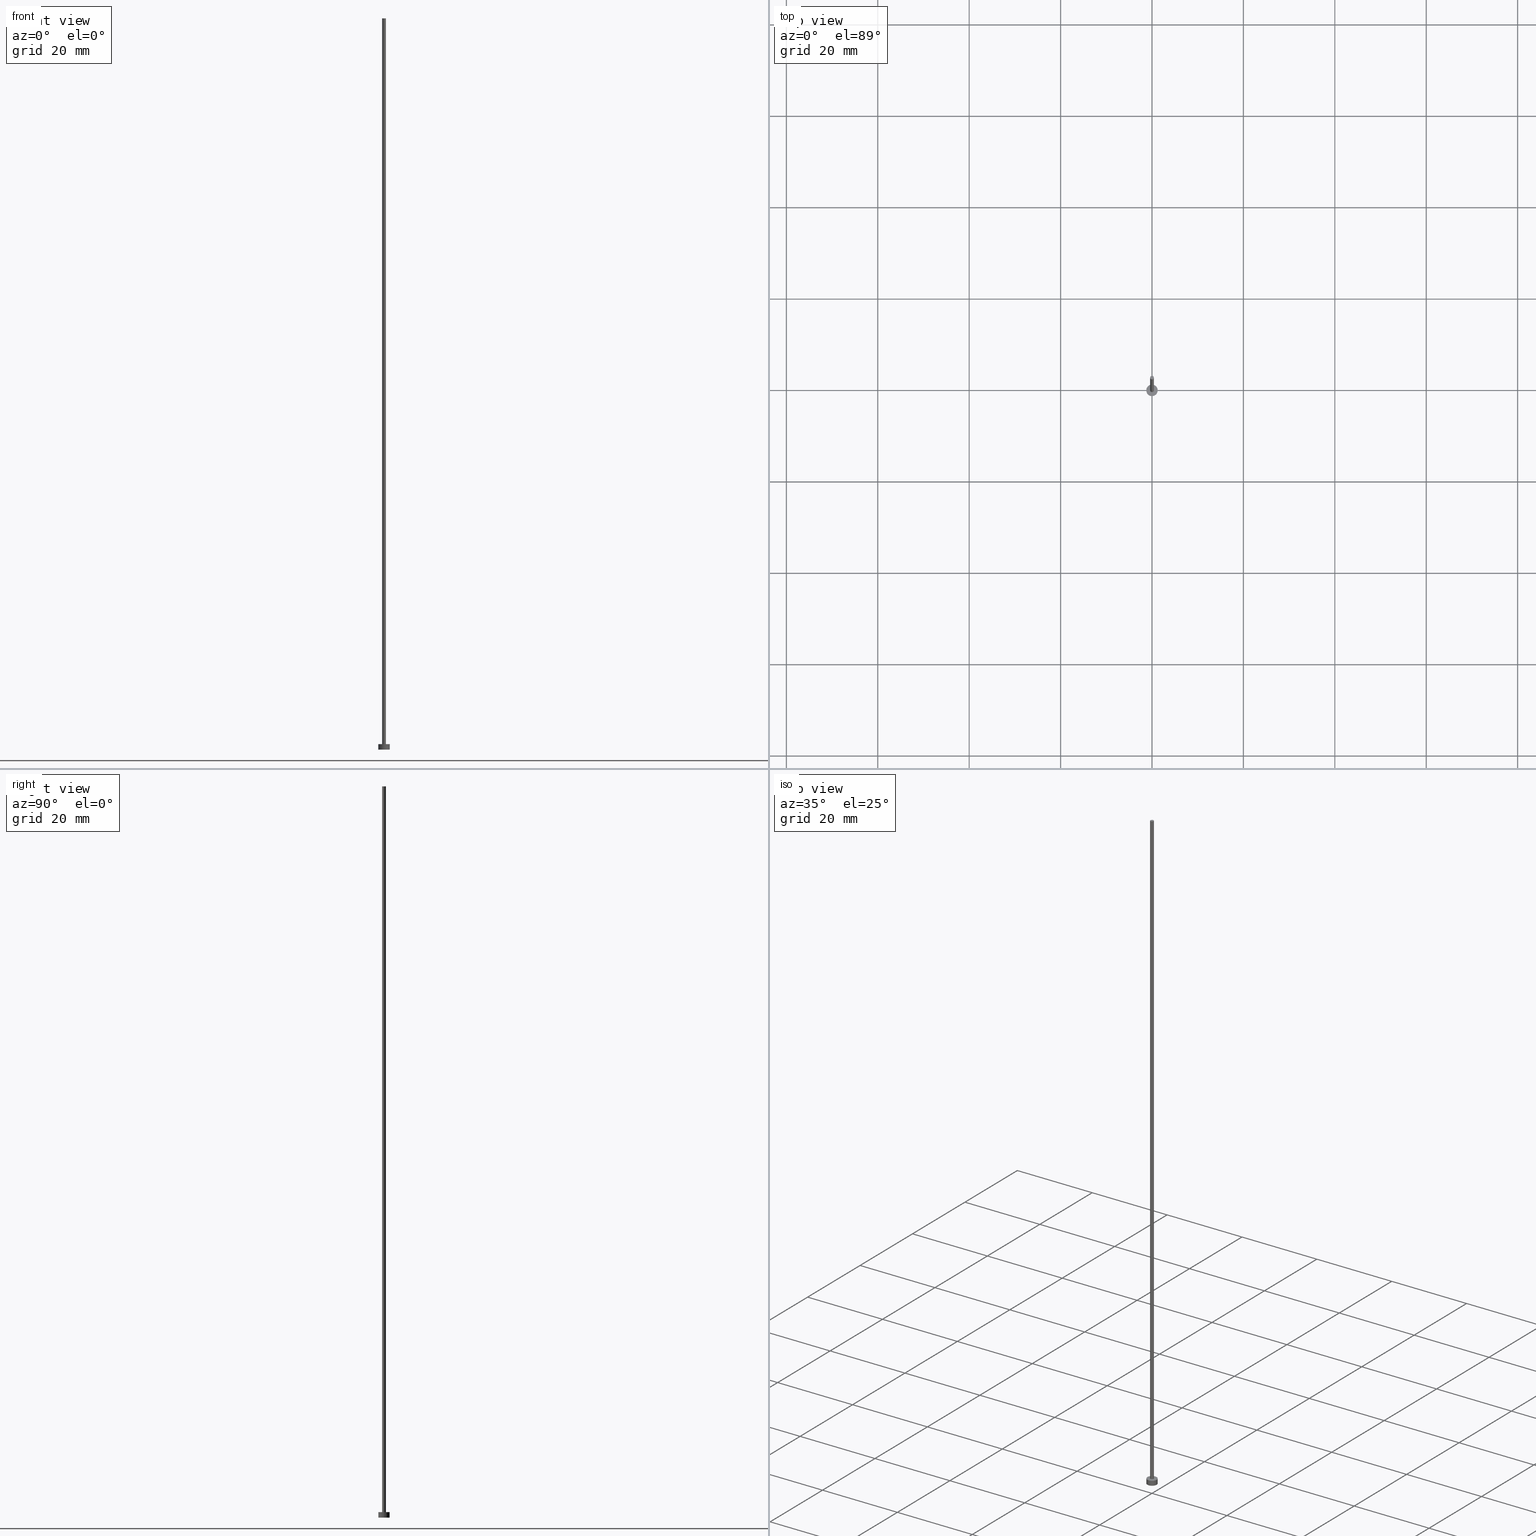
[diagram: canonical four-view strip — front | top / right | iso, engineering-drawing reading convention]
A machine part, canonical four-view strip (front | top / right | iso — engineering-drawing reading convention). The complete STEP part file that produces these views, byte-faithful:
ISO-10303-21;
HEADER;
FILE_DESCRIPTION (( 'STEP AP203' ),
    '1' );
FILE_NAME ('093f.STEP',
    '2026-02-06T12:44:34',
    ( '' ),
    ( '' ),
    'SwSTEP 2.0',
    'SolidWorks 2019',
    '' );
FILE_SCHEMA (( 'CONFIG_CONTROL_DESIGN' ));
ENDSEC;

DATA;
#1 = DIRECTION ( 'NONE',  ( 1.000000000000000000, 0.000000000000000000, -0.000000000000000000 ) ) ;
#2 = ORIENTED_EDGE ( 'NONE', *, *, #193, .T. ) ;
#3 = AXIS2_PLACEMENT_3D ( 'NONE', #77, #28, #171 ) ;
#4 = ORIENTED_EDGE ( 'NONE', *, *, #88, .F. ) ;
#5 = CARTESIAN_POINT ( 'NONE',  ( 0.000000000000000000, 0.000000000000000000, 1.199999999999999956 ) ) ;
#6 = CARTESIAN_POINT ( 'NONE',  ( 0.000000000000000000, 0.000000000000000000, 0.000000000000000000 ) ) ;
#7 = CARTESIAN_POINT ( 'NONE',  ( 0.000000000000000000, 0.000000000000000000, 0.000000000000000000 ) ) ;
#8 = EDGE_CURVE ( 'NONE', #227, #169, #126, .T. ) ;
#9 = VERTEX_POINT ( 'NONE', #155 ) ;
#10 = CARTESIAN_POINT ( 'NONE',  ( 0.000000000000000000, 0.000000000000000000, 160.0000000000000284 ) ) ;
#11 = CC_DESIGN_APPROVAL ( #67, ( #13 ) ) ;
#12 = PLANE ( 'NONE',  #108 ) ;
#13 = SECURITY_CLASSIFICATION ( '', '', #63 ) ;
#14 = APPROVAL_DATE_TIME ( #102, #67 ) ;
#15 = PERSON_AND_ORGANIZATION ( #103, #185 ) ;
#16 =( LENGTH_UNIT ( ) NAMED_UNIT ( * ) SI_UNIT ( .MILLI., .METRE. ) );
#17 = DIRECTION ( 'NONE',  ( -1.000000000000000000, 0.000000000000000000, 0.000000000000000000 ) ) ;
#18 = AXIS2_PLACEMENT_3D ( 'NONE', #219, #20, #36 ) ;
#19 = COORDINATED_UNIVERSAL_TIME_OFFSET ( 1, 0, .AHEAD. ) ;
#20 = DIRECTION ( 'NONE',  ( 0.000000000000000000, 0.000000000000000000, 1.000000000000000000 ) ) ;
#21 = DIRECTION ( 'NONE',  ( 1.000000000000000000, 0.000000000000000000, 0.000000000000000000 ) ) ;
#22 = ADVANCED_FACE ( 'NONE', ( #91, #202 ), #50, .T. ) ;
#23 = FACE_OUTER_BOUND ( 'NONE', #239, .T. ) ;
#24 = DIRECTION ( 'NONE',  ( -0.000000000000000000, -0.000000000000000000, -1.000000000000000000 ) ) ;
#25 = DIRECTION ( 'NONE',  ( 1.000000000000000000, 0.000000000000000000, 0.000000000000000000 ) ) ;
#26 = APPROVAL_ROLE ( '' ) ;
#27 = VECTOR ( 'NONE', #228, 1000.000000000000000 ) ;
#28 = DIRECTION ( 'NONE',  ( 0.000000000000000000, 0.000000000000000000, 1.000000000000000000 ) ) ;
#29 = CALENDAR_DATE ( 2026, 6, 2 ) ;
#30 = PERSON_AND_ORGANIZATION_ROLE ( 'classification_officer' ) ;
#31 = CC_DESIGN_DATE_AND_TIME_ASSIGNMENT ( #229, #46, ( #13 ) ) ;
#32 = PERSON_AND_ORGANIZATION_ROLE ( 'creator' ) ;
#33 = AXIS2_PLACEMENT_3D ( 'NONE', #130, #215, #149 ) ;
#34 = APPROVAL_DATE_TIME ( #47, #236 ) ;
#35 = EDGE_LOOP ( 'NONE', ( #168, #186, #199, #156 ) ) ;
#36 = DIRECTION ( 'NONE',  ( 1.000000000000000000, 0.000000000000000000, 0.000000000000000000 ) ) ;
#37 = EDGE_LOOP ( 'NONE', ( #114, #153 ) ) ;
#38 = DIRECTION ( 'NONE',  ( 0.000000000000000000, 0.000000000000000000, 1.000000000000000000 ) ) ;
#39 = DIRECTION ( 'NONE',  ( 0.000000000000000000, 0.000000000000000000, 1.000000000000000000 ) ) ;
#40 = ORIENTED_EDGE ( 'NONE', *, *, #142, .T. ) ;
#41 = ADVANCED_FACE ( 'NONE', ( #182 ), #134, .T. ) ;
#42 = APPROVAL_PERSON_ORGANIZATION ( #207, #67, #26 ) ;
#43 = DIRECTION ( 'NONE',  ( 0.000000000000000000, 0.000000000000000000, 1.000000000000000000 ) ) ;
#44 = CC_DESIGN_PERSON_AND_ORGANIZATION_ASSIGNMENT ( #15, #226, ( #250 ) ) ;
#45 = EDGE_CURVE ( 'NONE', #162, #53, #167, .T. ) ;
#46 = DATE_TIME_ROLE ( 'classification_date' ) ;
#47 = DATE_AND_TIME ( #175, #56 ) ;
#48 = LOCAL_TIME ( 13, 44, 34.00000000000000000, #19 ) ;
#49 = APPROVAL_STATUS ( 'not_yet_approved' ) ;
#50 = PLANE ( 'NONE',  #254 ) ;
#51 = VECTOR ( 'NONE', #61, 1000.000000000000000 ) ;
#52 = VERTEX_POINT ( 'NONE', #244 ) ;
#53 = VERTEX_POINT ( 'NONE', #116 ) ;
#54 = CARTESIAN_POINT ( 'NONE',  ( 0.4000000000000000222, 4.898587196589413075E-17, 160.0000000000000284 ) ) ;
#55 = DIRECTION ( 'NONE',  ( -1.000000000000000000, 0.000000000000000000, 0.000000000000000000 ) ) ;
#56 = LOCAL_TIME ( 13, 44, 34.00000000000000000, #129 ) ;
#57 = LINE ( 'NONE', #205, #27 ) ;
#58 = CARTESIAN_POINT ( 'NONE',  ( 0.000000000000000000, 0.000000000000000000, 0.000000000000000000 ) ) ;
#59 = ORIENTED_EDGE ( 'NONE', *, *, #45, .T. ) ;
#60 = DIRECTION ( 'NONE',  ( 0.000000000000000000, 0.000000000000000000, 1.000000000000000000 ) ) ;
#61 = DIRECTION ( 'NONE',  ( -0.000000000000000000, -0.000000000000000000, -1.000000000000000000 ) ) ;
#62 =( GEOMETRIC_REPRESENTATION_CONTEXT ( 3 ) GLOBAL_UNCERTAINTY_ASSIGNED_CONTEXT ( ( #204 ) ) GLOBAL_UNIT_ASSIGNED_CONTEXT ( ( #16, #82, #213 ) ) REPRESENTATION_CONTEXT ( 'NONE', 'WORKASPACE' ) );
#63 = SECURITY_CLASSIFICATION_LEVEL ( 'unclassified' ) ;
#64 = ADVANCED_FACE ( 'NONE', ( #100 ), #119, .T. ) ;
#65 = EDGE_CURVE ( 'NONE', #53, #162, #192, .T. ) ;
#66 = CYLINDRICAL_SURFACE ( 'NONE', #160, 1.250000000000000000 ) ;
#67 = APPROVAL ( #124, 'NEUR�EN�' ) ;
#68 = PERSON_AND_ORGANIZATION_ROLE ( 'design_owner' ) ;
#69 = LOCAL_TIME ( 13, 44, 34.00000000000000000, #101 ) ;
#70 = CC_DESIGN_DATE_AND_TIME_ASSIGNMENT ( #234, #176, ( #83 ) ) ;
#71 = ORIENTED_EDGE ( 'NONE', *, *, #133, .F. ) ;
#72 = EDGE_LOOP ( 'NONE', ( #98, #158, #181, #4 ) ) ;
#73 = APPLICATION_CONTEXT ( 'configuration controlled 3d designs of mechanical parts and assemblies' ) ;
#74 = DIRECTION ( 'NONE',  ( -0.000000000000000000, -0.000000000000000000, -1.000000000000000000 ) ) ;
#75 = AXIS2_PLACEMENT_3D ( 'NONE', #187, #105, #106 ) ;
#76 = ORIENTED_EDGE ( 'NONE', *, *, #142, .F. ) ;
#77 = CARTESIAN_POINT ( 'NONE',  ( 0.000000000000000000, 0.000000000000000000, 1.199999999999999956 ) ) ;
#78 = CYLINDRICAL_SURFACE ( 'NONE', #209, 0.4000000000000000222 ) ;
#79 = FACE_OUTER_BOUND ( 'NONE', #243, .T. ) ;
#80 = VECTOR ( 'NONE', #191, 1000.000000000000000 ) ;
#81 = AXIS2_PLACEMENT_3D ( 'NONE', #10, #38, #138 ) ;
#82 =( NAMED_UNIT ( * ) PLANE_ANGLE_UNIT ( ) SI_UNIT ( $, .RADIAN. ) );
#83 = PRODUCT_DEFINITION ( 'NEZN�M�', '', #250, #118 ) ;
#84 = VECTOR ( 'NONE', #196, 1000.000000000000000 ) ;
#85 = LINE ( 'NONE', #195, #80 ) ;
#86 = CALENDAR_DATE ( 2026, 6, 2 ) ;
#87 = CARTESIAN_POINT ( 'NONE',  ( 0.000000000000000000, 0.000000000000000000, 1.199999999999999956 ) ) ;
#88 = EDGE_CURVE ( 'NONE', #53, #227, #57, .T. ) ;
#89 = ORIENTED_EDGE ( 'NONE', *, *, #8, .F. ) ;
#90 = AXIS2_PLACEMENT_3D ( 'NONE', #140, #224, #95 ) ;
#91 = FACE_BOUND ( 'NONE', #137, .T. ) ;
#92 = DIRECTION ( 'NONE',  ( -0.000000000000000000, -0.000000000000000000, -1.000000000000000000 ) ) ;
#93 = CC_DESIGN_APPROVAL ( #236, ( #83 ) ) ;
#94 = CARTESIAN_POINT ( 'NONE',  ( 0.4000000000000000222, 4.898587196589413075E-17, 160.0000000000000284 ) ) ;
#95 = DIRECTION ( 'NONE',  ( 1.000000000000000000, 0.000000000000000000, 0.000000000000000000 ) ) ;
#96 = PRODUCT ( '093f', '093f', '', ( #247 ) ) ;
#97 = FACE_OUTER_BOUND ( 'NONE', #37, .T. ) ;
#98 = ORIENTED_EDGE ( 'NONE', *, *, #45, .F. ) ;
#99 = CC_DESIGN_SECURITY_CLASSIFICATION ( #13, ( #250 ) ) ;
#100 = FACE_OUTER_BOUND ( 'NONE', #178, .T. ) ;
#101 = COORDINATED_UNIVERSAL_TIME_OFFSET ( 1, 0, .AHEAD. ) ;
#102 = DATE_AND_TIME ( #29, #69 ) ;
#103 = PERSON ( 'NEUR�EN�', 'NEUR�EN�', 'NEUR�EN�', ('NEUR�EN�'), ('NEUR�EN�'), ('NEUR�EN�') ) ;
#104 = PLANE ( 'NONE',  #33 ) ;
#105 = DIRECTION ( 'NONE',  ( 0.000000000000000000, 0.000000000000000000, 1.000000000000000000 ) ) ;
#106 = DIRECTION ( 'NONE',  ( 1.000000000000000000, 0.000000000000000000, 0.000000000000000000 ) ) ;
#107 = APPROVAL_ROLE ( '' ) ;
#108 = AXIS2_PLACEMENT_3D ( 'NONE', #6, #248, #190 ) ;
#109 = ORIENTED_EDGE ( 'NONE', *, *, #238, .T. ) ;
#110 = CALENDAR_DATE ( 2026, 6, 2 ) ;
#111 = VERTEX_POINT ( 'NONE', #94 ) ;
#112 = LOCAL_TIME ( 13, 44, 34.00000000000000000, #251 ) ;
#113 = AXIS2_PLACEMENT_3D ( 'NONE', #58, #144, #211 ) ;
#114 = ORIENTED_EDGE ( 'NONE', *, *, #163, .T. ) ;
#115 = CARTESIAN_POINT ( 'NONE',  ( 0.000000000000000000, 0.000000000000000000, 160.0000000000000284 ) ) ;
#116 = CARTESIAN_POINT ( 'NONE',  ( -1.250000000000000000, 0.000000000000000000, 1.199999999999999956 ) ) ;
#117 = AXIS2_PLACEMENT_3D ( 'NONE', #115, #39, #21 ) ;
#118 = DESIGN_CONTEXT ( 'detailed design', #73, 'design' ) ;
#119 = CYLINDRICAL_SURFACE ( 'NONE', #135, 0.4000000000000000222 ) ;
#120 = CALENDAR_DATE ( 2026, 6, 2 ) ;
#121 = LINE ( 'NONE', #194, #84 ) ;
#122 = CC_DESIGN_PERSON_AND_ORGANIZATION_ASSIGNMENT ( #123, #30, ( #13 ) ) ;
#123 = PERSON_AND_ORGANIZATION ( #103, #185 ) ;
#124 = APPROVAL_STATUS ( 'not_yet_approved' ) ;
#125 = CARTESIAN_POINT ( 'NONE',  ( 0.4000000000000000222, 4.898587196589413075E-17, 1.199999999999999956 ) ) ;
#126 = CIRCLE ( 'NONE', #18, 1.250000000000000000 ) ;
#127 = FACE_OUTER_BOUND ( 'NONE', #35, .T. ) ;
#128 = APPROVAL_DATE_TIME ( #200, #170 ) ;
#129 = COORDINATED_UNIVERSAL_TIME_OFFSET ( 1, 0, .AHEAD. ) ;
#130 = CARTESIAN_POINT ( 'NONE',  ( 0.000000000000000000, 0.000000000000000000, 160.0000000000000284 ) ) ;
#131 = APPROVAL_PERSON_ORGANIZATION ( #132, #170, #152 ) ;
#132 = PERSON_AND_ORGANIZATION ( #103, #185 ) ;
#133 = EDGE_CURVE ( 'NONE', #169, #227, #141, .T. ) ;
#134 = CYLINDRICAL_SURFACE ( 'NONE', #212, 1.250000000000000000 ) ;
#135 = AXIS2_PLACEMENT_3D ( 'NONE', #145, #92, #166 ) ;
#136 = EDGE_LOOP ( 'NONE', ( #183, #59 ) ) ;
#137 = EDGE_LOOP ( 'NONE', ( #180, #240 ) ) ;
#138 = DIRECTION ( 'NONE',  ( 1.000000000000000000, 0.000000000000000000, 0.000000000000000000 ) ) ;
#139 = ADVANCED_FACE ( 'NONE', ( #79 ), #12, .F. ) ;
#140 = CARTESIAN_POINT ( 'NONE',  ( 0.000000000000000000, 0.000000000000000000, 1.199999999999999956 ) ) ;
#141 = CIRCLE ( 'NONE', #174, 1.250000000000000000 ) ;
#142 = EDGE_CURVE ( 'NONE', #111, #203, #164, .T. ) ;
#143 = PERSON_AND_ORGANIZATION ( #103, #185 ) ;
#144 = DIRECTION ( 'NONE',  ( 0.000000000000000000, 0.000000000000000000, 1.000000000000000000 ) ) ;
#145 = CARTESIAN_POINT ( 'NONE',  ( 0.000000000000000000, 0.000000000000000000, 160.0000000000000284 ) ) ;
#146 = CC_DESIGN_PERSON_AND_ORGANIZATION_ASSIGNMENT ( #252, #233, ( #83 ) ) ;
#147 = CIRCLE ( 'NONE', #90, 0.4000000000000000222 ) ;
#148 = APPROVAL_STATUS ( 'not_yet_approved' ) ;
#149 = DIRECTION ( 'NONE',  ( 1.000000000000000000, 0.000000000000000000, -0.000000000000000000 ) ) ;
#150 = PERSON_AND_ORGANIZATION ( #103, #185 ) ;
#151 = ADVANCED_BREP_SHAPE_REPRESENTATION ( '093f', ( #210, #113 ), #62 ) ;
#152 = APPROVAL_ROLE ( '' ) ;
#153 = ORIENTED_EDGE ( 'NONE', *, *, #173, .T. ) ;
#154 = CIRCLE ( 'NONE', #75, 0.4000000000000000222 ) ;
#155 = CARTESIAN_POINT ( 'NONE',  ( -0.4000000000000000222, 0.000000000000000000, 1.199999999999999956 ) ) ;
#156 = ORIENTED_EDGE ( 'NONE', *, *, #8, .T. ) ;
#157 = ORIENTED_EDGE ( 'NONE', *, *, #232, .T. ) ;
#158 = ORIENTED_EDGE ( 'NONE', *, *, #214, .T. ) ;
#159 = DIRECTION ( 'NONE',  ( -1.000000000000000000, 0.000000000000000000, 0.000000000000000000 ) ) ;
#160 = AXIS2_PLACEMENT_3D ( 'NONE', #253, #208, #17 ) ;
#161 = PRODUCT_DEFINITION_SHAPE ( 'NONE', 'NONE',  #83 ) ;
#162 = VERTEX_POINT ( 'NONE', #221 ) ;
#163 = EDGE_CURVE ( 'NONE', #52, #111, #206, .T. ) ;
#164 = LINE ( 'NONE', #54, #51 ) ;
#165 = APPLICATION_CONTEXT ( 'configuration controlled 3d designs of mechanical parts and assemblies' ) ;
#166 = DIRECTION ( 'NONE',  ( -1.000000000000000000, 0.000000000000000000, 0.000000000000000000 ) ) ;
#167 = CIRCLE ( 'NONE', #179, 1.250000000000000000 ) ;
#168 = ORIENTED_EDGE ( 'NONE', *, *, #214, .F. ) ;
#169 = VERTEX_POINT ( 'NONE', #223 ) ;
#170 = APPROVAL ( #49, 'NEUR�EN�' ) ;
#171 = DIRECTION ( 'NONE',  ( 1.000000000000000000, 0.000000000000000000, 0.000000000000000000 ) ) ;
#172 = CC_DESIGN_APPROVAL ( #170, ( #250 ) ) ;
#173 = EDGE_CURVE ( 'NONE', #111, #52, #237, .T. ) ;
#174 = AXIS2_PLACEMENT_3D ( 'NONE', #7, #43, #188 ) ;
#175 = CALENDAR_DATE ( 2026, 6, 2 ) ;
#176 = DATE_TIME_ROLE ( 'creation_date' ) ;
#177 = DIRECTION ( 'NONE',  ( 0.000000000000000000, 0.000000000000000000, 1.000000000000000000 ) ) ;
#178 = EDGE_LOOP ( 'NONE', ( #76, #218, #109, #2 ) ) ;
#179 = AXIS2_PLACEMENT_3D ( 'NONE', #242, #60, #25 ) ;
#180 = ORIENTED_EDGE ( 'NONE', *, *, #193, .F. ) ;
#181 = ORIENTED_EDGE ( 'NONE', *, *, #133, .T. ) ;
#182 = FACE_OUTER_BOUND ( 'NONE', #72, .T. ) ;
#183 = ORIENTED_EDGE ( 'NONE', *, *, #65, .T. ) ;
#184 = CC_DESIGN_PERSON_AND_ORGANIZATION_ASSIGNMENT ( #150, #68, ( #96 ) ) ;
#185 = ORGANIZATION ( 'NEUR�EN�', 'NEUR�EN�', '' ) ;
#186 = ORIENTED_EDGE ( 'NONE', *, *, #65, .F. ) ;
#187 = CARTESIAN_POINT ( 'NONE',  ( 0.000000000000000000, 0.000000000000000000, 1.199999999999999956 ) ) ;
#188 = DIRECTION ( 'NONE',  ( 1.000000000000000000, 0.000000000000000000, 0.000000000000000000 ) ) ;
#189 = ADVANCED_FACE ( 'NONE', ( #23 ), #78, .T. ) ;
#190 = DIRECTION ( 'NONE',  ( 1.000000000000000000, 0.000000000000000000, -0.000000000000000000 ) ) ;
#191 = DIRECTION ( 'NONE',  ( -0.000000000000000000, -0.000000000000000000, -1.000000000000000000 ) ) ;
#192 = CIRCLE ( 'NONE', #3, 1.250000000000000000 ) ;
#193 = EDGE_CURVE ( 'NONE', #9, #203, #147, .T. ) ;
#194 = CARTESIAN_POINT ( 'NONE',  ( 1.250000000000000000, 1.530808498934191571E-16, 1.199999999999999956 ) ) ;
#195 = CARTESIAN_POINT ( 'NONE',  ( -0.4000000000000000222, 0.000000000000000000, 160.0000000000000284 ) ) ;
#196 = DIRECTION ( 'NONE',  ( -0.000000000000000000, -0.000000000000000000, -1.000000000000000000 ) ) ;
#197 = ADVANCED_FACE ( 'NONE', ( #97 ), #104, .T. ) ;
#198 = APPLICATION_PROTOCOL_DEFINITION ( 'international standard', 'config_control_design', 1994, #73 ) ;
#199 = ORIENTED_EDGE ( 'NONE', *, *, #88, .T. ) ;
#200 = DATE_AND_TIME ( #110, #201 ) ;
#201 = LOCAL_TIME ( 13, 44, 34.00000000000000000, #235 ) ;
#202 = FACE_OUTER_BOUND ( 'NONE', #136, .T. ) ;
#203 = VERTEX_POINT ( 'NONE', #125 ) ;
#204 = UNCERTAINTY_MEASURE_WITH_UNIT (LENGTH_MEASURE( 1.000000000000000082E-05 ), #16, 'distance_accuracy_value', 'NONE');
#205 = CARTESIAN_POINT ( 'NONE',  ( -1.250000000000000000, 0.000000000000000000, 1.199999999999999956 ) ) ;
#206 = CIRCLE ( 'NONE', #81, 0.4000000000000000222 ) ;
#207 = PERSON_AND_ORGANIZATION ( #103, #185 ) ;
#208 = DIRECTION ( 'NONE',  ( -0.000000000000000000, -0.000000000000000000, -1.000000000000000000 ) ) ;
#209 = AXIS2_PLACEMENT_3D ( 'NONE', #245, #24, #55 ) ;
#210 = MANIFOLD_SOLID_BREP ( 'P�idat vysunut�m3', #225 ) ;
#211 = DIRECTION ( 'NONE',  ( 1.000000000000000000, 0.000000000000000000, 0.000000000000000000 ) ) ;
#212 = AXIS2_PLACEMENT_3D ( 'NONE', #5, #74, #159 ) ;
#213 =( NAMED_UNIT ( * ) SI_UNIT ( $, .STERADIAN. ) SOLID_ANGLE_UNIT ( ) );
#214 = EDGE_CURVE ( 'NONE', #162, #169, #121, .T. ) ;
#215 = DIRECTION ( 'NONE',  ( 0.000000000000000000, 0.000000000000000000, 1.000000000000000000 ) ) ;
#216 = APPROVAL_PERSON_ORGANIZATION ( #230, #236, #107 ) ;
#217 = ADVANCED_FACE ( 'NONE', ( #127 ), #66, .T. ) ;
#218 = ORIENTED_EDGE ( 'NONE', *, *, #163, .F. ) ;
#219 = CARTESIAN_POINT ( 'NONE',  ( 0.000000000000000000, 0.000000000000000000, 0.000000000000000000 ) ) ;
#220 = ORIENTED_EDGE ( 'NONE', *, *, #173, .F. ) ;
#221 = CARTESIAN_POINT ( 'NONE',  ( 1.250000000000000000, 1.530808498934191571E-16, 1.199999999999999956 ) ) ;
#222 = ORIENTED_EDGE ( 'NONE', *, *, #238, .F. ) ;
#223 = CARTESIAN_POINT ( 'NONE',  ( 1.250000000000000000, 1.530808498934191571E-16, 0.000000000000000000 ) ) ;
#224 = DIRECTION ( 'NONE',  ( 0.000000000000000000, 0.000000000000000000, 1.000000000000000000 ) ) ;
#225 = CLOSED_SHELL ( 'NONE', ( #189, #41, #217, #22, #139, #64, #197 ) ) ;
#226 = PERSON_AND_ORGANIZATION_ROLE ( 'design_supplier' ) ;
#227 = VERTEX_POINT ( 'NONE', #231 ) ;
#228 = DIRECTION ( 'NONE',  ( -0.000000000000000000, -0.000000000000000000, -1.000000000000000000 ) ) ;
#229 = DATE_AND_TIME ( #120, #112 ) ;
#230 = PERSON_AND_ORGANIZATION ( #103, #185 ) ;
#231 = CARTESIAN_POINT ( 'NONE',  ( -1.250000000000000000, 0.000000000000000000, 0.000000000000000000 ) ) ;
#232 = EDGE_CURVE ( 'NONE', #203, #9, #154, .T. ) ;
#233 = PERSON_AND_ORGANIZATION_ROLE ( 'creator' ) ;
#234 = DATE_AND_TIME ( #86, #48 ) ;
#235 = COORDINATED_UNIVERSAL_TIME_OFFSET ( 1, 0, .AHEAD. ) ;
#236 = APPROVAL ( #148, 'NEUR�EN�' ) ;
#237 = CIRCLE ( 'NONE', #117, 0.4000000000000000222 ) ;
#238 = EDGE_CURVE ( 'NONE', #52, #9, #85, .T. ) ;
#239 = EDGE_LOOP ( 'NONE', ( #220, #40, #157, #222 ) ) ;
#240 = ORIENTED_EDGE ( 'NONE', *, *, #232, .F. ) ;
#241 = CC_DESIGN_PERSON_AND_ORGANIZATION_ASSIGNMENT ( #143, #32, ( #250 ) ) ;
#242 = CARTESIAN_POINT ( 'NONE',  ( 0.000000000000000000, 0.000000000000000000, 1.199999999999999956 ) ) ;
#243 = EDGE_LOOP ( 'NONE', ( #89, #71 ) ) ;
#244 = CARTESIAN_POINT ( 'NONE',  ( -0.4000000000000000222, 0.000000000000000000, 160.0000000000000284 ) ) ;
#245 = CARTESIAN_POINT ( 'NONE',  ( 0.000000000000000000, 0.000000000000000000, 160.0000000000000284 ) ) ;
#246 = PRODUCT_RELATED_PRODUCT_CATEGORY ( 'detail', '', ( #96 ) ) ;
#247 = MECHANICAL_CONTEXT ( 'NONE', #165, 'mechanical' ) ;
#248 = DIRECTION ( 'NONE',  ( 0.000000000000000000, 0.000000000000000000, 1.000000000000000000 ) ) ;
#249 = SHAPE_DEFINITION_REPRESENTATION ( #161, #151 ) ;
#250 = PRODUCT_DEFINITION_FORMATION_WITH_SPECIFIED_SOURCE ( 'LIBOVOLN�', '', #96, .NOT_KNOWN. ) ;
#251 = COORDINATED_UNIVERSAL_TIME_OFFSET ( 1, 0, .AHEAD. ) ;
#252 = PERSON_AND_ORGANIZATION ( #103, #185 ) ;
#253 = CARTESIAN_POINT ( 'NONE',  ( 0.000000000000000000, 0.000000000000000000, 1.199999999999999956 ) ) ;
#254 = AXIS2_PLACEMENT_3D ( 'NONE', #87, #177, #1 ) ;
#255 = APPLICATION_PROTOCOL_DEFINITION ( 'international standard', 'config_control_design', 1994, #165 ) ;
ENDSEC;
END-ISO-10303-21;
